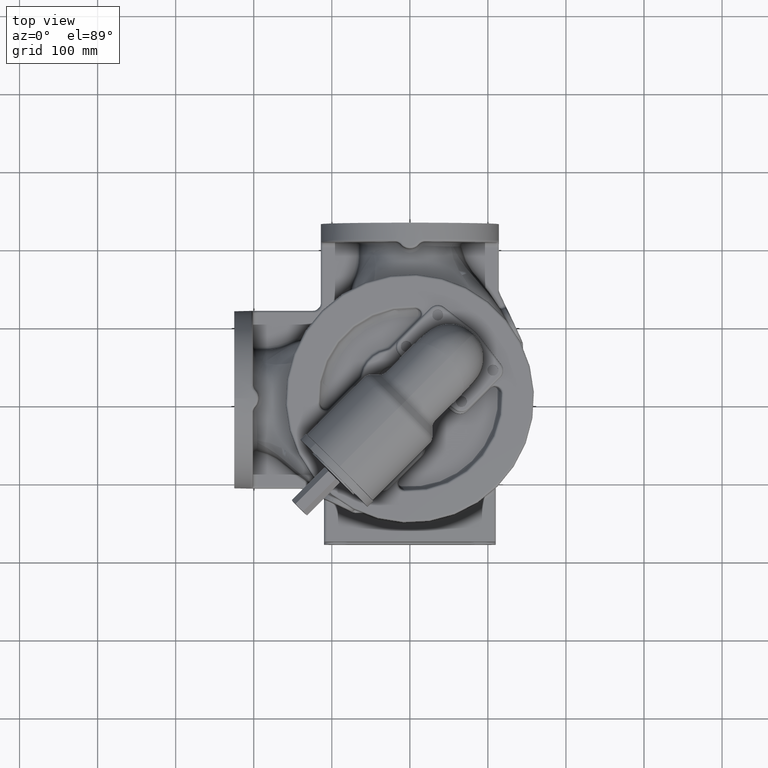
[diagram: clean part render]
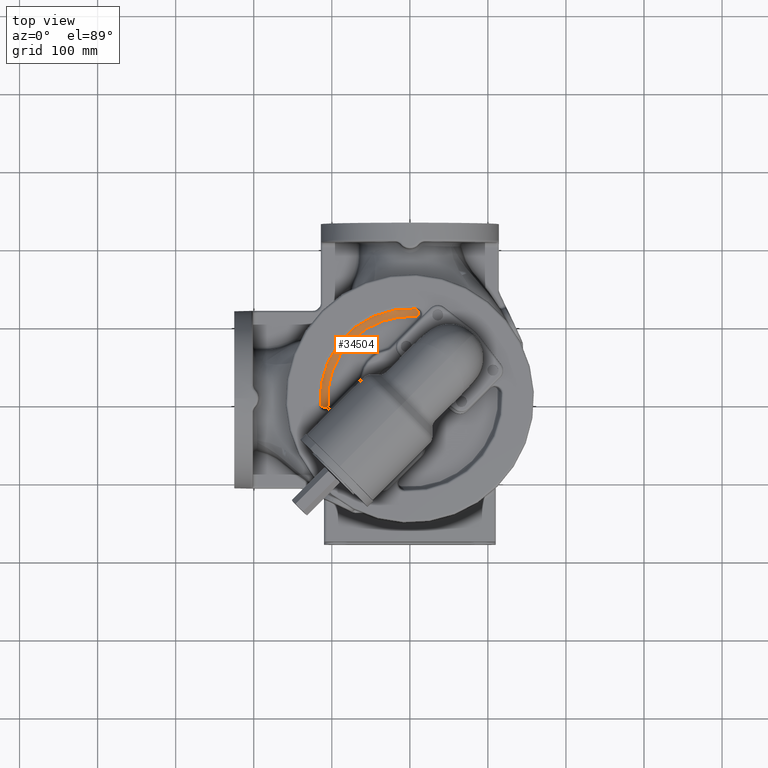
[diagram: same view with one face highlighted and labeled with its STEP entity id]
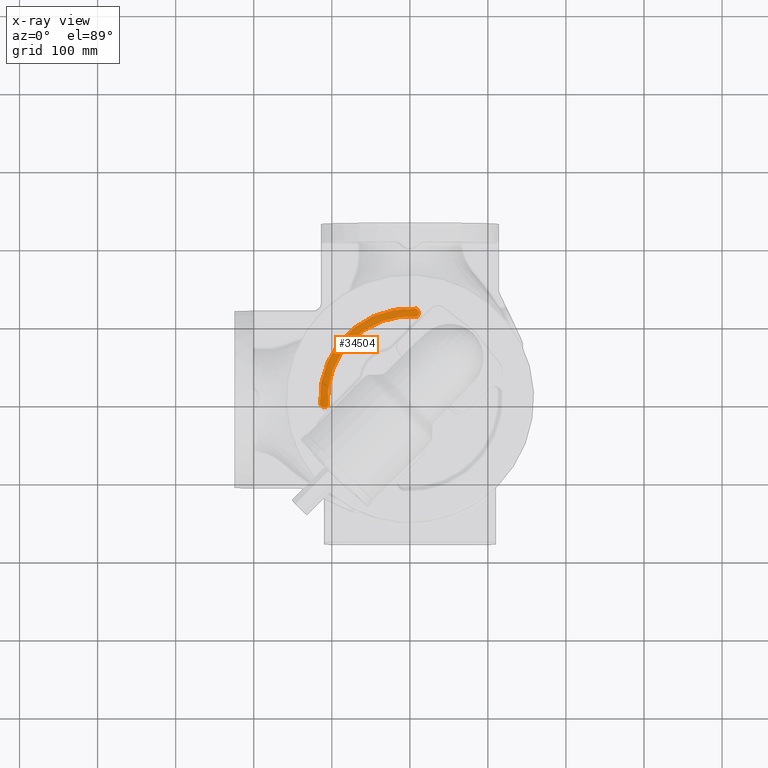
[diagram: x-ray of the same camera — body ghosted, the highlighted face saturated]
A machine part, top view. The second image highlights one B-rep face of the part: STEP entity #34504.
The next image is the same camera in x-ray: the body ghosted, the highlighted face saturated — about 0% of this face is hidden behind the body in this view.
In plain terms, the highlighted toroidal blend (fillet) surface has major radius 105.327 mm and minor (blend) radius 10 mm.
Its self-contained STEP definition (entity closure, byte-faithful):
#2830=CARTESIAN_POINT('',(1.750332280748E-13,-3.455634846573E-13,
1.974118095490E2));
#2831=DIRECTION('',(0.E0,0.E0,-1.E0));
#2832=DIRECTION('',(-9.975342688307E-1,-7.018106944421E-2,0.E0));
#2833=AXIS2_PLACEMENT_3D('',#2830,#2831,#2832);
#3046=CARTESIAN_POINT('',(1.750332280748E-13,-3.455634846573E-13,1.9E2));
#3047=DIRECTION('',(0.E0,0.E0,-1.E0));
#3048=DIRECTION('',(-9.959728162048E-1,-8.965572698468E-2,0.E0));
#3049=AXIS2_PLACEMENT_3D('',#3046,#3047,#3048);
#3080=CARTESIAN_POINT('',(-1.067878686868E2,-1.061599061661E1,
1.901995017200E2));
#3081=CARTESIAN_POINT('',(-1.068304855157E2,-1.064263921654E1,
1.902086365451E2));
#3082=CARTESIAN_POINT('',(-1.069183755139E2,-1.069511671632E1,
1.902280732475E2));
#3083=CARTESIAN_POINT('',(-1.070585802197E2,-1.077115357116E1,
1.902611837473E2));
#3084=CARTESIAN_POINT('',(-1.072064033308E2,-1.084372358911E1,
1.902984522397E2));
#3085=CARTESIAN_POINT('',(-1.073615892844E2,-1.091239195486E1,
1.903401911266E2));
#3086=CARTESIAN_POINT('',(-1.075237913350E2,-1.097671206183E1,
1.903866964752E2));
#3087=CARTESIAN_POINT('',(-1.076926311236E2,-1.103626931778E1,
1.904382532347E2));
#3088=CARTESIAN_POINT('',(-1.078677095884E2,-1.109068069542E1,
1.904951362265E2));
#3089=CARTESIAN_POINT('',(-1.080486203733E2,-1.113959265394E1,
1.905576113115E2));
#3090=CARTESIAN_POINT('',(-1.082349520880E2,-1.118268100535E1,
1.906259347248E2));
#3091=CARTESIAN_POINT('',(-1.084262976673E2,-1.121964895002E1,
1.907003554099E2));
#3092=CARTESIAN_POINT('',(-1.086222567383E2,-1.125022381577E1,
1.907811159630E2));
#3093=CARTESIAN_POINT('',(-1.088224383584E2,-1.127415125376E1,
1.908684541683E2));
#3094=CARTESIAN_POINT('',(-1.090264606402E2,-1.129119357877E1,
1.909626039507E2));
#3095=CARTESIAN_POINT('',(-1.092339500774E2,-1.130112607750E1,
1.910637963285E2));
#3096=CARTESIAN_POINT('',(-1.094445399029E2,-1.130373277375E1,
1.911722600259E2));
#3097=CARTESIAN_POINT('',(-1.096578673197E2,-1.129880564657E1,
1.912882216572E2));
#3098=CARTESIAN_POINT('',(-1.098735706043E2,-1.128614251972E1,
1.914119055951E2));
#3099=CARTESIAN_POINT('',(-1.100912857897E2,-1.126554527102E1,
1.915435333485E2));
#3100=CARTESIAN_POINT('',(-1.103106434030E2,-1.123681786240E1,
1.916833225649E2));
#3101=CARTESIAN_POINT('',(-1.105312655009E2,-1.119977001871E1,
1.918314862106E2));
#3102=CARTESIAN_POINT('',(-1.107527622462E2,-1.115421544017E1,
1.919882306612E2));
#3103=CARTESIAN_POINT('',(-1.109747290402E2,-1.109997298361E1,
1.921537538104E2));
#3104=CARTESIAN_POINT('',(-1.111967435403E2,-1.103686621504E1,
1.923282423697E2));
#3105=CARTESIAN_POINT('',(-1.114183638696E2,-1.096473032616E1,
1.925118701023E2));
#3106=CARTESIAN_POINT('',(-1.116391262443E2,-1.088341113500E1,
1.927047944091E2));
#3107=CARTESIAN_POINT('',(-1.118585435600E2,-1.079276920746E1,
1.929071534293E2));
#3108=CARTESIAN_POINT('',(-1.120761038475E2,-1.069268042059E1,
1.931190619666E2));
#3109=CARTESIAN_POINT('',(-1.122912702575E2,-1.058304290524E1,
1.933406087312E2));
#3110=CARTESIAN_POINT('',(-1.125034810096E2,-1.046377979412E1,
1.935718525727E2));
#3111=CARTESIAN_POINT('',(-1.127121497781E2,-1.033484259175E1,
1.938128183814E2));
#3112=CARTESIAN_POINT('',(-1.129166671933E2,-1.019621530987E1,
1.940634935682E2));
#3113=CARTESIAN_POINT('',(-1.131164027162E2,-1.004791830176E1,
1.943238241799E2));
#3114=CARTESIAN_POINT('',(-1.133107081276E2,-9.890011449492E0,
1.945937125103E2));
#3115=CARTESIAN_POINT('',(-1.134989193476E2,-9.722600749793E0,
1.948730118512E2));
#3116=CARTESIAN_POINT('',(-1.136803619877E2,-9.545839094704E0,
1.951615255268E2));
#3117=CARTESIAN_POINT('',(-1.138543528644E2,-9.359933690457E0,
1.954589983924E2));
#3118=CARTESIAN_POINT('',(-1.140202145107E2,-9.165137943982E0,
1.957651312229E2));
#3119=CARTESIAN_POINT('',(-1.141772631830E2,-8.961776325279E0,
1.960795453725E2));
#3120=CARTESIAN_POINT('',(-1.143248445662E2,-8.750205598226E0,
1.964018388577E2));
#3121=CARTESIAN_POINT('',(-1.144623053571E2,-8.530871312571E0,
1.967315164914E2));
#3122=CARTESIAN_POINT('',(-1.145890252443E2,-8.304248582002E0,
1.970680359082E2));
#3123=CARTESIAN_POINT('',(-1.146659510209E2,-8.148708324155E0,
1.972965361946E2));
#3124=CARTESIAN_POINT('',(-1.147024638239E2,-8.069839634165E0,
1.974118095553E2));
#3126=CARTESIAN_POINT('',(8.069839284907E0,1.147024638661E2,1.974118096208E2));
#3127=CARTESIAN_POINT('',(8.148706042513E0,1.146659518227E2,1.972965385460E2));
#3128=CARTESIAN_POINT('',(8.304244508166E0,1.145890274877E2,1.970680424600E2));
#3129=CARTESIAN_POINT('',(8.530864929025E0,1.144623090068E2,1.967315256928E2));
#3130=CARTESIAN_POINT('',(8.750198614447E0,1.143248492232E2,1.964018496517E2));
#3131=CARTESIAN_POINT('',(8.961766331628E0,1.141772704387E2,1.960795606120E2));
#3132=CARTESIAN_POINT('',(9.165127576533E0,1.140202229493E2,1.957651475099E2));
#3133=CARTESIAN_POINT('',(9.359921420078E0,1.138543638385E2,1.954590179667E2));
#3134=CARTESIAN_POINT('',(9.545826297994E0,1.136803746029E2,1.951615463818E2));
#3135=CARTESIAN_POINT('',(9.722586880585E0,1.134989342653E2,1.948730348240E2));
#3136=CARTESIAN_POINT('',(9.889996886081E0,1.133107249758E2,1.945937367025E2));
#3137=CARTESIAN_POINT('',(1.004790303340E1,1.131164216756E2,1.943238496628E2));
#3138=CARTESIAN_POINT('',(1.019620026833E1,1.129166883219E2,1.940635203061E2));
#3139=CARTESIAN_POINT('',(1.033482790097E1,1.127121730639E2,1.938128461624E2));
#3140=CARTESIAN_POINT('',(1.046376538681E1,1.125035063065E2,1.935718810324E2));
#3141=CARTESIAN_POINT('',(1.058302830391E1,1.122912974368E2,1.933406375371E2));
#3142=CARTESIAN_POINT('',(1.069266553562E1,1.120761328123E2,1.931190909113E2));
#3143=CARTESIAN_POINT('',(1.079275539709E1,1.118585744856E2,1.929071827377E2));
#3144=CARTESIAN_POINT('',(1.088339906455E1,1.116391591336E2,1.927048240291E2));
#3145=CARTESIAN_POINT('',(1.096471885489E1,1.114183984345E2,1.925118995749E2));
#3146=CARTESIAN_POINT('',(1.103685452407E1,1.111967795852E2,1.923282714146E2));
#3147=CARTESIAN_POINT('',(1.109996242271E1,1.109747667050E2,1.921537826185E2));
#3148=CARTESIAN_POINT('',(1.115420722712E1,1.107528016055E2,1.919882593212E2));
#3149=CARTESIAN_POINT('',(1.119976283374E1,1.105313063618E2,1.918315144265E2));
#3150=CARTESIAN_POINT('',(1.123681104215E1,1.103106856337E2,1.916833501732E2));
#3151=CARTESIAN_POINT('',(1.126553999106E1,1.100913294063E2,1.915435604166E2));
#3152=CARTESIAN_POINT('',(1.128613955535E1,1.098736155873E2,1.914119321271E2));
#3153=CARTESIAN_POINT('',(1.129880376223E1,1.096579135836E2,1.912882475019E2));
#3154=CARTESIAN_POINT('',(1.130373231168E1,1.094445873234E2,1.911722851212E2));
#3155=CARTESIAN_POINT('',(1.130112746846E1,1.092339985545E2,1.910638206363E2));
#3156=CARTESIAN_POINT('',(1.129119692269E1,1.090265101089E2,1.909626274383E2));
#3157=CARTESIAN_POINT('',(1.127415631740E1,1.088224887183E2,1.908684767768E2));
#3158=CARTESIAN_POINT('',(1.125023087158E1,1.086223077888E2,1.907811376244E2));
#3159=CARTESIAN_POINT('',(1.121965795952E1,1.084263492648E2,1.907003760803E2));
#3160=CARTESIAN_POINT('',(1.118269185597E1,1.082350041441E2,1.906259543877E2));
#3161=CARTESIAN_POINT('',(1.113960580580E1,1.080486725762E2,1.905576298994E2));
#3162=CARTESIAN_POINT('',(1.109069590577E1,1.078677617377E2,1.904951537076E2));
#3163=CARTESIAN_POINT('',(1.103628658215E1,1.076926831928E2,1.904382696392E2));
#3164=CARTESIAN_POINT('',(1.097673104476E1,1.075238425259E2,1.903867116318E2));
#3165=CARTESIAN_POINT('',(1.091241366304E1,1.073616409108E2,1.903402054542E2));
#3166=CARTESIAN_POINT('',(1.084374571548E1,1.072064509161E2,1.902984646531E2));
#3167=CARTESIAN_POINT('',(1.077118113515E1,1.070586336721E2,1.902611967969E2));
#3168=CARTESIAN_POINT('',(1.069513915637E1,1.069184141939E2,1.902280819605E2));
#3169=CARTESIAN_POINT('',(1.064264858264E1,1.068305004813E2,1.902086397532E2));
#3170=CARTESIAN_POINT('',(1.061599061652E1,1.067878686866E2,1.901995017200E2));
#3172=CARTESIAN_POINT('',(1.061599061652E1,1.067878686866E2,1.901995017200E2));
#3173=CARTESIAN_POINT('',(1.055181865591E1,1.066852530568E2,1.901775061822E2));
#3174=CARTESIAN_POINT('',(1.042300064086E1,1.064790871141E2,1.901370819773E2));
#3175=CARTESIAN_POINT('',(1.022848779714E1,1.061672473422E2,1.900872494891E2));
#3176=CARTESIAN_POINT('',(1.003298026763E1,1.058532682913E2,1.900483522413E2));
#3177=CARTESIAN_POINT('',(9.836738546833E0,1.055375572456E2,1.900204867604E2));
#3178=CARTESIAN_POINT('',(9.640025959950E0,1.052205258146E2,1.900037301088E2));
#3179=CARTESIAN_POINT('',(9.508775354017E0,1.050086164660E2,1.900000000068E2));
#3180=CARTESIAN_POINT('',(9.443144559492E0,1.049025600197E2,1.9E2));
#3182=CARTESIAN_POINT('',(-1.049025600197E2,-9.443144559472E0,1.9E2));
#3183=CARTESIAN_POINT('',(-1.050086170072E2,-9.508775555788E0,
1.900000000059E2));
#3184=CARTESIAN_POINT('',(-1.052205273881E2,-9.640027074397E0,
1.900037301416E2));
#3185=CARTESIAN_POINT('',(-1.055375613613E2,-9.836741800593E0,
1.900204870171E2));
#3186=CARTESIAN_POINT('',(-1.058532749247E2,-1.003298475391E1,
1.900483529419E2));
#3187=CARTESIAN_POINT('',(-1.061672524116E2,-1.022849180520E1,
1.900872502454E2));
#3188=CARTESIAN_POINT('',(-1.064790902030E2,-1.042300284413E1,
1.901370825567E2));
#3189=CARTESIAN_POINT('',(-1.066852542981E2,-1.055181924923E1,
1.901775064466E2));
#3190=CARTESIAN_POINT('',(-1.067878686868E2,-1.061599061661E1,
1.901995017200E2));
#26534=VERTEX_POINT('',#3080);
#26535=VERTEX_POINT('',#3124);
#26537=VERTEX_POINT('',#3182);
#26543=CARTESIAN_POINT('',(9.443144559921E0,1.049025600195E2,1.9E2));
#26544=VERTEX_POINT('',#26543);
#26545=CARTESIAN_POINT('',(8.069838977819E0,1.147024638938E2,1.974118095490E2));
#26546=VERTEX_POINT('',#26545);
#26548=VERTEX_POINT('',#3170);
#34488=CARTESIAN_POINT('',(1.750332280748E-13,-3.455634846573E-13,2.E2));
#34489=DIRECTION('',(0.E0,0.E0,1.E0));
#34490=DIRECTION('',(7.052187461187E-1,-7.089897884474E-1,0.E0));
#34491=AXIS2_PLACEMENT_3D('',#34488,#34489,#34490);
#34492=TOROIDAL_SURFACE('',#34491,1.053267301202E2,1.E1);
#34494=ORIENTED_EDGE('',*,*,#34493,.T.);
#34495=ORIENTED_EDGE('',*,*,#34278,.T.);
#34497=ORIENTED_EDGE('',*,*,#34496,.T.);
#34499=ORIENTED_EDGE('',*,*,#34498,.T.);
#34500=ORIENTED_EDGE('',*,*,#34409,.F.);
#34501=ORIENTED_EDGE('',*,*,#34479,.T.);
#34502=EDGE_LOOP('',(#34494,#34495,#34497,#34499,#34500,#34501));
#34503=FACE_OUTER_BOUND('',#34502,.F.);
#34504=ADVANCED_FACE('',(#34503),#34492,.F.);
#2834=CIRCLE('',#2833,1.149859883831E2);
#3050=CIRCLE('',#3049,1.053267301202E2);
#3125=B_SPLINE_CURVE_WITH_KNOTS('',3,(#3080,#3081,#3082,#3083,#3084,#3085,#3086,
#3087,#3088,#3089,#3090,#3091,#3092,#3093,#3094,#3095,#3096,#3097,#3098,#3099,
#3100,#3101,#3102,#3103,#3104,#3105,#3106,#3107,#3108,#3109,#3110,#3111,#3112,
#3113,#3114,#3115,#3116,#3117,#3118,#3119,#3120,#3121,#3122,#3123,#3124),
.UNSPECIFIED.,.F.,.F.,(4,1,1,1,1,1,1,1,1,1,1,1,1,1,1,1,1,1,1,1,1,1,1,1,1,1,1,1,
1,1,1,1,1,1,1,1,1,1,1,1,1,1,4),(0.E0,2.380952380952E-2,4.761904761905E-2,
7.142857142857E-2,9.523809523810E-2,1.190476190476E-1,1.428571428571E-1,
1.666666666667E-1,1.904761904762E-1,2.142857142857E-1,2.380952380952E-1,
2.619047619048E-1,2.857142857143E-1,3.095238095238E-1,3.333333333333E-1,
3.571428571429E-1,3.809523809524E-1,4.047619047619E-1,4.285714285714E-1,
4.523809523810E-1,4.761904761905E-1,5.E-1,5.238095238095E-1,5.476190476190E-1,
5.714285714286E-1,5.952380952381E-1,6.190476190476E-1,6.428571428571E-1,
6.666666666667E-1,6.904761904762E-1,7.142857142857E-1,7.380952380952E-1,
7.619047619048E-1,7.857142857143E-1,8.095238095238E-1,8.333333333333E-1,
8.571428571429E-1,8.809523809524E-1,9.047619047619E-1,9.285714285714E-1,
9.523809523810E-1,9.761904761905E-1,1.E0),.UNSPECIFIED.);
#3171=B_SPLINE_CURVE_WITH_KNOTS('',3,(#3126,#3127,#3128,#3129,#3130,#3131,#3132,
#3133,#3134,#3135,#3136,#3137,#3138,#3139,#3140,#3141,#3142,#3143,#3144,#3145,
#3146,#3147,#3148,#3149,#3150,#3151,#3152,#3153,#3154,#3155,#3156,#3157,#3158,
#3159,#3160,#3161,#3162,#3163,#3164,#3165,#3166,#3167,#3168,#3169,#3170),
.UNSPECIFIED.,.F.,.F.,(4,1,1,1,1,1,1,1,1,1,1,1,1,1,1,1,1,1,1,1,1,1,1,1,1,1,1,1,
1,1,1,1,1,1,1,1,1,1,1,1,1,1,4),(0.E0,2.380952380952E-2,4.761904761905E-2,
7.142857142857E-2,9.523809523810E-2,1.190476190476E-1,1.428571428571E-1,
1.666666666667E-1,1.904761904762E-1,2.142857142857E-1,2.380952380952E-1,
2.619047619048E-1,2.857142857143E-1,3.095238095238E-1,3.333333333333E-1,
3.571428571429E-1,3.809523809524E-1,4.047619047619E-1,4.285714285714E-1,
4.523809523810E-1,4.761904761905E-1,5.E-1,5.238095238095E-1,5.476190476190E-1,
5.714285714286E-1,5.952380952381E-1,6.190476190476E-1,6.428571428571E-1,
6.666666666667E-1,6.904761904762E-1,7.142857142857E-1,7.380952380952E-1,
7.619047619048E-1,7.857142857143E-1,8.095238095238E-1,8.333333333333E-1,
8.571428571429E-1,8.809523809524E-1,9.047619047619E-1,9.285714285714E-1,
9.523809523810E-1,9.761904761905E-1,1.E0),.UNSPECIFIED.);
#3181=B_SPLINE_CURVE_WITH_KNOTS('',3,(#3172,#3173,#3174,#3175,#3176,#3177,#3178,
#3179,#3180),.UNSPECIFIED.,.F.,.F.,(4,1,1,1,1,1,4),(0.E0,1.666666666667E-1,
3.333333333333E-1,5.E-1,6.666666666667E-1,8.333333333333E-1,1.E0),
.UNSPECIFIED.);
#3191=B_SPLINE_CURVE_WITH_KNOTS('',3,(#3182,#3183,#3184,#3185,#3186,#3187,#3188,
#3189,#3190),.UNSPECIFIED.,.F.,.F.,(4,1,1,1,1,1,4),(0.E0,1.666666666667E-1,
3.333333333333E-1,5.E-1,6.666666666667E-1,8.333333333333E-1,1.E0),
.UNSPECIFIED.);
#34278=EDGE_CURVE('',#26535,#26546,#2834,.T.);
#34409=EDGE_CURVE('',#26537,#26544,#3050,.T.);
#34479=EDGE_CURVE('',#26537,#26534,#3191,.T.);
#34493=EDGE_CURVE('',#26534,#26535,#3125,.T.);
#34496=EDGE_CURVE('',#26546,#26548,#3171,.T.);
#34498=EDGE_CURVE('',#26548,#26544,#3181,.T.);